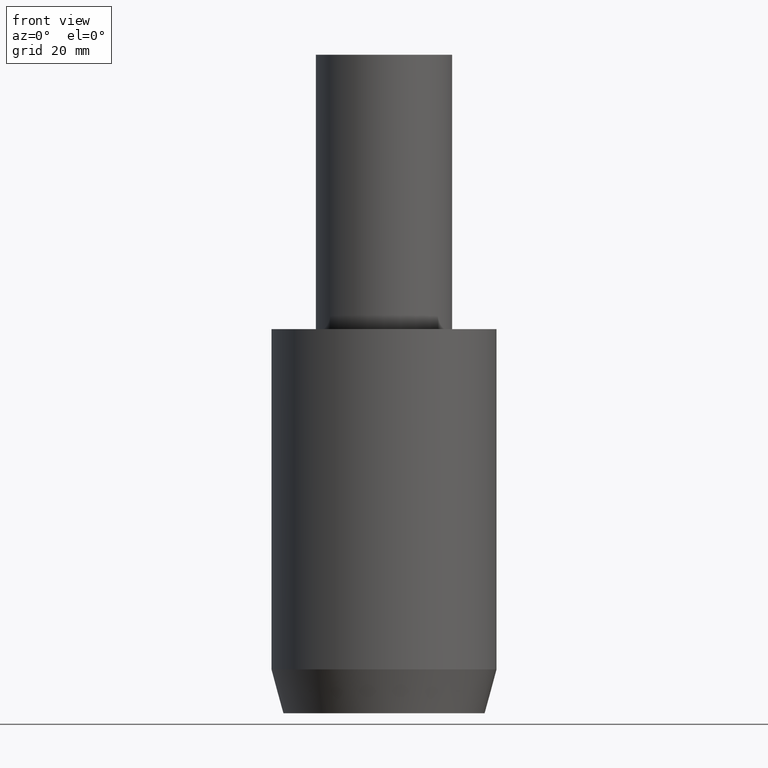
[diagram: clean part render]
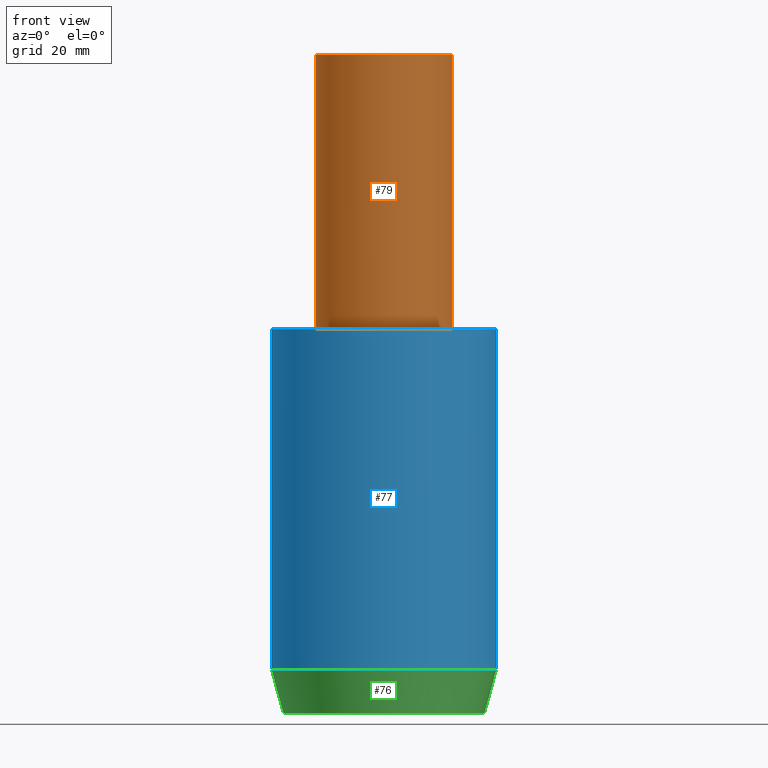
[diagram: same view with three faces highlighted in distinct colors, each labeled with its STEP entity id]
A machine part, front view with three faces highlighted in distinct colors.
Their STEP definitions:

[orange] entity #79 — the highlighted cylindrical surface (bore or boss wall) has radius 12.5 mm, axis along (0, 0, -1).
#79=ADVANCED_FACE('',(#93,#94),#95,.T.);
#93=FACE_BOUND('',#109,.T.);
#94=FACE_BOUND('',#110,.T.);
#95=CYLINDRICAL_SURFACE('',#111,12.5);
#109=EDGE_LOOP('',(#133));
#110=EDGE_LOOP('',(#134));
#111=AXIS2_PLACEMENT_3D('',#135,#136,#137);
#133=ORIENTED_EDGE('',*,*,#146,.F.);
#134=ORIENTED_EDGE('',*,*,#145,.T.);
#135=CARTESIAN_POINT('',(-1.53080849893419E-015,-3.06161699786838E-015,25.0));
#136=DIRECTION('',(6.12323399573677E-017,1.22464679914735E-016,-1.0));
#137=DIRECTION('',(-1.23259516440783E-032,1.0,1.22464679914735E-016));
#145=EDGE_CURVE('',#153,#153,#154,.T.);
#146=EDGE_CURVE('',#155,#155,#156,.T.);
#153=VERTEX_POINT('',#163);
#154=CIRCLE('',#164,12.5);
#155=VERTEX_POINT('',#165);
#156=CIRCLE('',#166,12.5);
#163=CARTESIAN_POINT('',(-1.54074395550979E-031,12.5,1.53080849893419E-015));
#164=AXIS2_PLACEMENT_3D('',#176,#177,#178);
#165=CARTESIAN_POINT('',(-3.06161699786838E-015,12.5,50.0));
#166=AXIS2_PLACEMENT_3D('',#179,#180,#181);
#176=CARTESIAN_POINT('',(0.0,0.0,0.0));
#177=DIRECTION('',(-6.12323399573677E-017,-1.22464679914735E-016,1.0));
#178=DIRECTION('',(-1.23259516440783E-032,1.0,1.22464679914735E-016));
#179=CARTESIAN_POINT('',(-3.06161699786838E-015,-6.12323399573676E-015,50.0));
#180=DIRECTION('',(-6.12323399573677E-017,-1.22464679914735E-016,1.0));
#181=DIRECTION('',(-1.23259516440783E-032,1.0,1.22464679914735E-016));

[blue] entity #77 — the highlighted cylindrical surface (bore or boss wall) has radius 20.5 mm, axis along (0, 0, -1).
#77=ADVANCED_FACE('',(#87,#88),#89,.T.);
#87=FACE_BOUND('',#103,.T.);
#88=FACE_BOUND('',#104,.T.);
#89=CYLINDRICAL_SURFACE('',#105,20.5);
#103=EDGE_LOOP('',(#123));
#104=EDGE_LOOP('',(#124));
#105=AXIS2_PLACEMENT_3D('',#125,#126,#127);
#123=ORIENTED_EDGE('',*,*,#144,.F.);
#124=ORIENTED_EDGE('',*,*,#143,.T.);
#125=CARTESIAN_POINT('',(1.89820253837565E-015,3.79640507675129E-015,-30.9999999950557));
#126=DIRECTION('',(6.12323399573677E-017,1.22464679914735E-016,-1.0));
#127=DIRECTION('',(-1.23259516440783E-032,1.0,1.22464679914735E-016));
#143=EDGE_CURVE('',#149,#149,#150,.T.);
#144=EDGE_CURVE('',#151,#151,#152,.T.);
#149=VERTEX_POINT('',#159);
#150=CIRCLE('',#160,20.5);
#151=VERTEX_POINT('',#161);
#152=CIRCLE('',#162,20.5);
#159=CARTESIAN_POINT('',(3.79640507675129E-015,20.5,-61.9999999901114));
#160=AXIS2_PLACEMENT_3D('',#170,#171,#172);
#161=CARTESIAN_POINT('',(-2.52682008703605E-031,20.5,2.51052593825207E-015));
#162=AXIS2_PLACEMENT_3D('',#173,#174,#175);
#170=CARTESIAN_POINT('',(3.79640507675129E-015,7.59281015350258E-015,-61.9999999901114));
#171=DIRECTION('',(-6.12323399573677E-017,-1.22464679914735E-016,1.0));
#172=DIRECTION('',(-1.23259516440783E-032,1.0,1.22464679914735E-016));
#173=CARTESIAN_POINT('',(0.0,0.0,0.0));
#174=DIRECTION('',(-6.12323399573677E-017,-1.22464679914735E-016,1.0));
#175=DIRECTION('',(-1.23259516440783E-032,1.0,1.22464679914735E-016));

[green] entity #76 — the highlighted conical surface has half-angle 15 deg.
#76=ADVANCED_FACE('',(#84,#85),#86,.T.);
#84=FACE_BOUND('',#100,.T.);
#85=FACE_BOUND('',#101,.T.);
#86=CONICAL_SURFACE('',#102,19.4282032322792,0.261799387022769);
#100=EDGE_LOOP('',(#118));
#101=EDGE_LOOP('',(#119));
#102=AXIS2_PLACEMENT_3D('',#120,#121,#122);
#118=ORIENTED_EDGE('',*,*,#143,.F.);
#119=ORIENTED_EDGE('',*,*,#142,.T.);
#120=CARTESIAN_POINT('',(4.04133443688351E-015,8.08266887376703E-015,-65.9999999950557));
#121=DIRECTION('',(-6.12323399573677E-017,-1.22464679914735E-016,1.0));
#122=DIRECTION('',(-1.23259516440783E-032,1.0,1.22464679914735E-016));
#142=EDGE_CURVE('',#147,#147,#148,.T.);
#143=EDGE_CURVE('',#149,#149,#150,.T.);
#147=VERTEX_POINT('',#157);
#148=CIRCLE('',#158,18.3564064645584);
#149=VERTEX_POINT('',#159);
#150=CIRCLE('',#160,20.5);
#157=CARTESIAN_POINT('',(4.28626379701574E-015,18.3564064645584,-70.0));
#158=AXIS2_PLACEMENT_3D('',#167,#168,#169);
#159=CARTESIAN_POINT('',(3.79640507675129E-015,20.5,-61.9999999901114));
#160=AXIS2_PLACEMENT_3D('',#170,#171,#172);
#167=CARTESIAN_POINT('',(4.28626379701574E-015,8.57252759403147E-015,-70.0));
#168=DIRECTION('',(-6.12323399573677E-017,-1.22464679914735E-016,1.0));
#169=DIRECTION('',(-1.23259516440783E-032,1.0,1.22464679914735E-016));
#170=CARTESIAN_POINT('',(3.79640507675129E-015,7.59281015350258E-015,-61.9999999901114));
#171=DIRECTION('',(-6.12323399573677E-017,-1.22464679914735E-016,1.0));
#172=DIRECTION('',(-1.23259516440783E-032,1.0,1.22464679914735E-016));